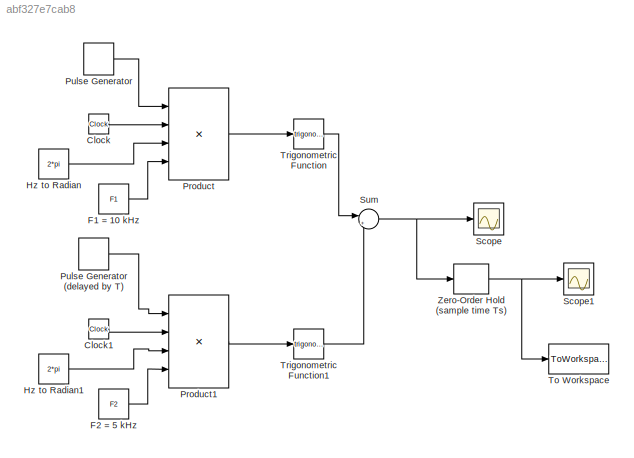
MODEL slx_abf327e7cab8
KIND model
CONFIG AbsTol = auto
CONFIG EnableMultiTasking = off
CONFIG FixedStep = Ts
CONFIG InitFcn = clc;clear;close all;\n\nms = 1e-3;\nkHz = 1e3;\n\nTs = 0.01 * ms;\nFs = 1/Ts;\nF1 = 10 * kHz;\nF2 = 5  * kHz;\nT = 0.5 * ms;
CONFIG MaxStep = auto
CONFIG MinStep = auto
CONFIG RelTol = 1e-3
CONFIG SampleTimeConstraint = Unconstrained
CONFIG Solver = FixedStepDiscrete
CONFIG SolverName = FixedStepDiscrete
CONFIG StartTime = 0.0
CONFIG StopFcn = n = 0:length(simout)-1;\nw = [0:500]*pi/500;\nX = dtft(simout,n,w);\nmagX = abs(X);\nmagX = magX / max(magX);\nplot(w/pi,magX)\ngrid on;\ntitle('DTFT Magnitude of FSK:  F1 = 10 kHz, F2 = 5 kHz, Tstop = 1 ms')\nxlabel('digital frequency \omega  normalized by \pi')\nylabel('|X(e^{j\omega}|');
CONFIG StopTime = 5e-3
BLOCK [Clock] Clock
  Decimation = 1
BLOCK [Clock] Clock1
  Decimation = 1
BLOCK [Constant] F1 = 10 kHz
  Value = F1
BLOCK [Constant] F2 = 5 kHz
  Value = F2
BLOCK [Constant] Hz to Radian
  Value = 2*pi
BLOCK [Constant] Hz to Radian1
  Value = 2*pi
BLOCK [Product] Product
  InputSameDT = off
  Inputs = 4
  OutDataTypeStr = Inherit: Inherit via internal rule
  Ports = [4, 1]
  RndMeth = Floor
  SaturateOnIntegerOverflow = off
BLOCK [Product] Product1
  InputSameDT = off
  Inputs = 4
  OutDataTypeStr = Inherit: Inherit via internal rule
  Ports = [4, 1]
  RndMeth = Floor
  SaturateOnIntegerOverflow = off
BLOCK [DiscretePulseGenerator] Pulse Generator
  Period = 2*T
  Ports = [0, 1]
  PulseType = Time based
  PulseWidth = 50
BLOCK [DiscretePulseGenerator] Pulse Generator (delayed by T)
  Period = 2*T
  PhaseDelay = T
  Ports = [0, 1]
  PulseType = Time based
  PulseWidth = 50
BLOCK [Scope] Scope
  Floating = off
  NumInputPorts = 1
  Ports = [1]
  ScopeSpecificationString = Simulink.scopes.TimeScopeBlockCfg('CurrentConfiguration', extmgr.ConfigurationSet(extmgr.Configuration('Core','General UI',true),extmgr.Configuration('Core','Source UI',true),extmgr.Configuration('Sources','WiredSimulink',true),extmgr.Configuration('Visuals','Time Domain',true,'SerializedDisplays',{struct('MinYLimReal','-1.25','MaxYLimReal','1.25','YLabelReal','','MinYLimMag','0.00000','MaxYLimMag...<+1334ch>
BLOCK [Scope] Scope1
  Floating = off
  NumInputPorts = 1
  Ports = [1]
  ScopeSpecificationString = Simulink.scopes.TimeScopeBlockCfg('CurrentConfiguration', extmgr.ConfigurationSet(extmgr.Configuration('Core','General UI',true),extmgr.Configuration('Core','Source UI',true),extmgr.Configuration('Sources','WiredSimulink',true,'DataLoggingVariableName','ScopeData1'),extmgr.Configuration('Visuals','Time Domain',true,'SerializedDisplays',{struct('MinYLimReal','-1.25','MaxYLimReal','1.25','YLabelReal...<+1426ch>
BLOCK [Sum] Sum
  IconShape = round
  InputSameDT = off
  Inputs = |++
  OutDataTypeStr = Inherit: Inherit via internal rule
  Ports = [2, 1]
  SaturateOnIntegerOverflow = off
BLOCK [ToWorkspace] To Workspace
  FixptAsFi = on
  MaxDataPoints = inf
  Ports = [1]
  SampleTime = -1
  Save2DSignal = 3-D array (concatenate along third dimension)
  VariableName = simout
BLOCK [Trigonometry] Trigonometric Function
  Ports = [1, 1]
BLOCK [Trigonometry] Trigonometric Function1
  Ports = [1, 1]
BLOCK [ZeroOrderHold] Zero-Order Hold (sample time Ts)
  SampleTime = Ts
LINE Clock1:1 -> Product1:2
LINE Clock:1 -> Product:2
LINE F1 = 10 kHz:1 -> Product:4
LINE F2 = 5 kHz:1 -> Product1:4
LINE Hz to Radian1:1 -> Product1:3
LINE Hz to Radian:1 -> Product:3
LINE Product1:1 -> Trigonometric Function1:1
LINE Product:1 -> Trigonometric Function:1
LINE Pulse Generator (delayed by T):1 -> Product1:1
LINE Pulse Generator:1 -> Product:1
NET Sum:1 -> Scope:1, Zero-Order Hold (sample time Ts):1
LINE Trigonometric Function1:1 -> Sum:2
LINE Trigonometric Function:1 -> Sum:1
NET Zero-Order Hold (sample time Ts):1 -> Scope1:1, To Workspace:1
note: NET lines group one-source signal fan-out (src -> all destinations, sorted); 1:1 wires keep LINE
